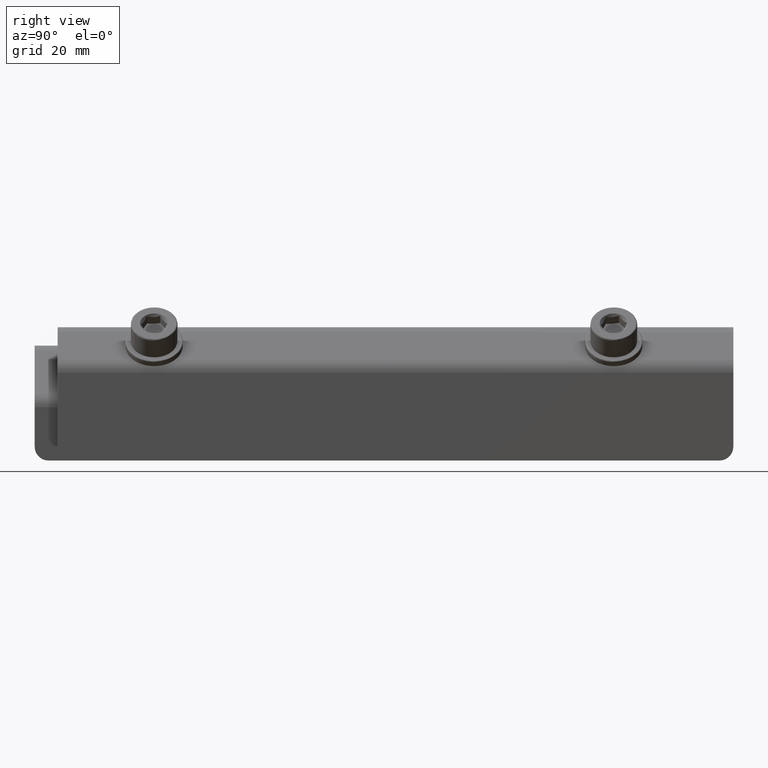
[diagram: clean part render]
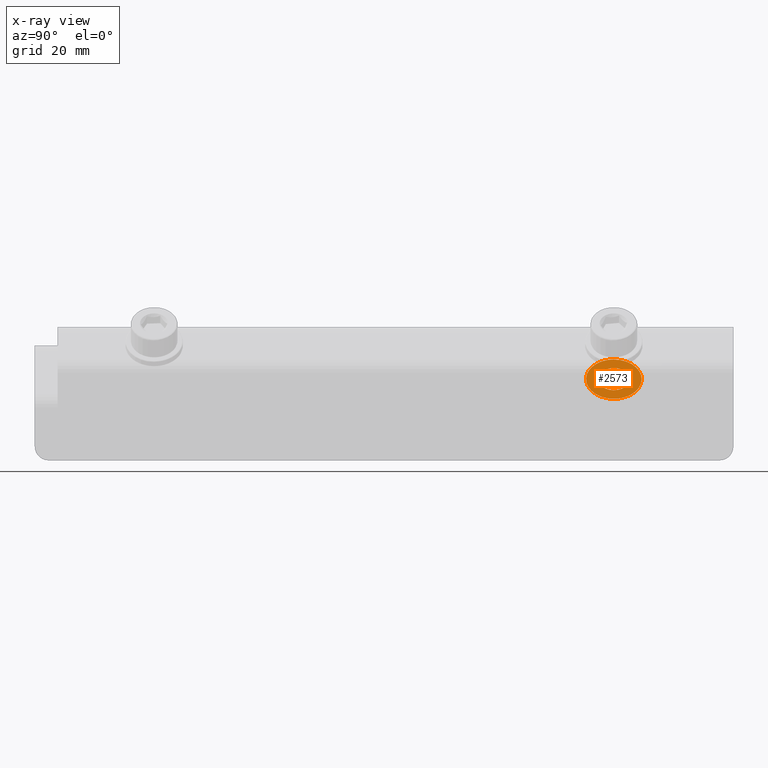
[diagram: x-ray — body ghosted, one internal face saturated and labeled with its STEP entity id]
A machine part, right view, then the same camera in x-ray: the body is ghosted and one INTERNAL B-rep face — a face not visible from any outside direction — is saturated and labeled: STEP entity #2573.
In plain terms, the highlighted planar face has unit normal (0.7071, 0, 0.7071).
Its self-contained STEP definition (entity closure, byte-faithful):
#49 = CARTESIAN_POINT ( 'NONE',  ( 9.771437545366142174, 46.28756298078300091, 161.4746951672789237 ) ) ;
#65 = CARTESIAN_POINT ( 'NONE',  ( 18.32742959772335567, 34.18756298078300659, 152.9187031149216409 ) ) ;
#150 = CARTESIAN_POINT ( 'NONE',  ( 16.45359662757900665, 53.08756298078301228, 154.7925360850660184 ) ) ;
#168 = EDGE_LOOP ( 'NONE', ( #579, #3675 ) ) ;
#186 = DIRECTION ( 'NONE',  ( 0.7071067811865486830, 0.000000000000000000, 0.7071067811865464625 ) ) ;
#202 = CARTESIAN_POINT ( 'NONE',  ( 11.64527051551049119, 46.28756298078300091, 159.6008621971345462 ) ) ;
#229 = FACE_BOUND ( 'NONE', #2086, .T. ) ;
#239 =( BOUNDED_CURVE ( )  B_SPLINE_CURVE ( 3, ( #3173, #150, #1495, #1165 ),
 .UNSPECIFIED., .F., .F. ) 
 B_SPLINE_CURVE_WITH_KNOTS ( ( 4, 4 ),
 ( 0.000000000000000000, 1.000000000000000000 ),
 .UNSPECIFIED. ) 
 CURVE ( )  GEOMETRIC_REPRESENTATION_ITEM ( )  RATIONAL_B_SPLINE_CURVE ( ( 1.000000000000000000, 0.3333333333333333703, 0.3333333333333333703, 1.000000000000000000 ) ) 
 REPRESENTATION_ITEM ( '' )  );
#244 = CARTESIAN_POINT ( 'NONE',  ( 9.771437545366142174, 46.28756298078300091, 161.4746951672789237 ) ) ;
#250 = CARTESIAN_POINT ( 'NONE',  ( 11.64527051551049119, 46.28756298078300091, 159.6008621971345462 ) ) ;
#278 = ORIENTED_EDGE ( 'NONE', *, *, #386, .F. ) ;
#346 = EDGE_CURVE ( 'NONE', #3913, #3278, #1139, .T. ) ;
#386 = EDGE_CURVE ( 'NONE', #1122, #1148, #4308, .T. ) ;
#389 = CARTESIAN_POINT ( 'NONE',  ( 18.32742959772335567, 46.28756298078300091, 152.9187031149216693 ) ) ;
#546 = CARTESIAN_POINT ( 'NONE',  ( 9.771437545366154609, 58.38756298078300233, 161.4746951672789237 ) ) ;
#579 = ORIENTED_EDGE ( 'NONE', *, *, #3746, .F. ) ;
#1122 = VERTEX_POINT ( 'NONE', #250 ) ;
#1130 = DIRECTION ( 'NONE',  ( 0.7071067811865464625, 0.000000000000000000, -0.7071067811865486830 ) ) ;
#1139 =( BOUNDED_CURVE ( )  B_SPLINE_CURVE ( 3, ( #389, #65, #2766, #49 ),
 .UNSPECIFIED., .F., .F. ) 
 B_SPLINE_CURVE_WITH_KNOTS ( ( 4, 4 ),
 ( 0.000000000000000000, 1.000000000000000000 ),
 .UNSPECIFIED. ) 
 CURVE ( )  GEOMETRIC_REPRESENTATION_ITEM ( )  RATIONAL_B_SPLINE_CURVE ( ( 1.000000000000000000, 0.3333333333333333703, 0.3333333333333333703, 1.000000000000000000 ) ) 
 REPRESENTATION_ITEM ( '' )  );
#1148 = VERTEX_POINT ( 'NONE', #2943 ) ;
#1165 = CARTESIAN_POINT ( 'NONE',  ( 11.64527051551049119, 46.28756298078300091, 159.6008621971345462 ) ) ;
#1200 = CARTESIAN_POINT ( 'NONE',  ( 14.04943357154474981, 46.28756298078300091, 157.1966991411002823 ) ) ;
#1476 = CARTESIAN_POINT ( 'NONE',  ( 11.64527051551049119, 39.48756298078298954, 159.6008621971345747 ) ) ;
#1495 = CARTESIAN_POINT ( 'NONE',  ( 11.64527051551049119, 53.08756298078301228, 159.6008621971345747 ) ) ;
#1594 = CARTESIAN_POINT ( 'NONE',  ( 18.32742959772335567, 46.28756298078300091, 152.9187031149216693 ) ) ;
#2086 = EDGE_LOOP ( 'NONE', ( #278, #3908 ) ) ;
#2227 = AXIS2_PLACEMENT_3D ( 'NONE', #1200, #186, #1130 ) ;
#2297 = CARTESIAN_POINT ( 'NONE',  ( 9.771437545366142174, 46.28756298078300091, 161.4746951672789237 ) ) ;
#2526 = CARTESIAN_POINT ( 'NONE',  ( 18.32742959772335567, 58.38756298078300233, 152.9187031149216409 ) ) ;
#2573 = ADVANCED_FACE ( 'NONE', ( #3254, #229 ), #2813, .T. ) ;
#2766 = CARTESIAN_POINT ( 'NONE',  ( 9.771437545366151056, 34.18756298078300659, 161.4746951672789237 ) ) ;
#2806 =( BOUNDED_CURVE ( )  B_SPLINE_CURVE ( 3, ( #244, #546, #2526, #1594 ),
 .UNSPECIFIED., .F., .F. ) 
 B_SPLINE_CURVE_WITH_KNOTS ( ( 4, 4 ),
 ( 0.000000000000000000, 1.000000000000000000 ),
 .UNSPECIFIED. ) 
 CURVE ( )  GEOMETRIC_REPRESENTATION_ITEM ( )  RATIONAL_B_SPLINE_CURVE ( ( 1.000000000000000000, 0.3333333333333333703, 0.3333333333333333703, 1.000000000000000000 ) ) 
 REPRESENTATION_ITEM ( '' )  );
#2813 = PLANE ( 'NONE',  #2227 ) ;
#2943 = CARTESIAN_POINT ( 'NONE',  ( 16.45359662757900665, 46.28756298078300091, 154.7925360850660184 ) ) ;
#3133 = CARTESIAN_POINT ( 'NONE',  ( 16.45359662757900665, 39.48756298078298954, 154.7925360850660184 ) ) ;
#3173 = CARTESIAN_POINT ( 'NONE',  ( 16.45359662757900665, 46.28756298078300091, 154.7925360850660184 ) ) ;
#3254 = FACE_OUTER_BOUND ( 'NONE', #168, .T. ) ;
#3278 = VERTEX_POINT ( 'NONE', #2297 ) ;
#3675 = ORIENTED_EDGE ( 'NONE', *, *, #346, .F. ) ;
#3727 = CARTESIAN_POINT ( 'NONE',  ( 18.32742959772335567, 46.28756298078300091, 152.9187031149216693 ) ) ;
#3746 = EDGE_CURVE ( 'NONE', #3278, #3913, #2806, .T. ) ;
#3908 = ORIENTED_EDGE ( 'NONE', *, *, #4082, .F. ) ;
#3913 = VERTEX_POINT ( 'NONE', #3727 ) ;
#4082 = EDGE_CURVE ( 'NONE', #1148, #1122, #239, .T. ) ;
#4176 = CARTESIAN_POINT ( 'NONE',  ( 16.45359662757900665, 46.28756298078300091, 154.7925360850660184 ) ) ;
#4308 =( BOUNDED_CURVE ( )  B_SPLINE_CURVE ( 3, ( #202, #1476, #3133, #4176 ),
 .UNSPECIFIED., .F., .F. ) 
 B_SPLINE_CURVE_WITH_KNOTS ( ( 4, 4 ),
 ( 0.000000000000000000, 1.000000000000000000 ),
 .UNSPECIFIED. ) 
 CURVE ( )  GEOMETRIC_REPRESENTATION_ITEM ( )  RATIONAL_B_SPLINE_CURVE ( ( 1.000000000000000000, 0.3333333333333333703, 0.3333333333333333703, 1.000000000000000000 ) ) 
 REPRESENTATION_ITEM ( '' )  );